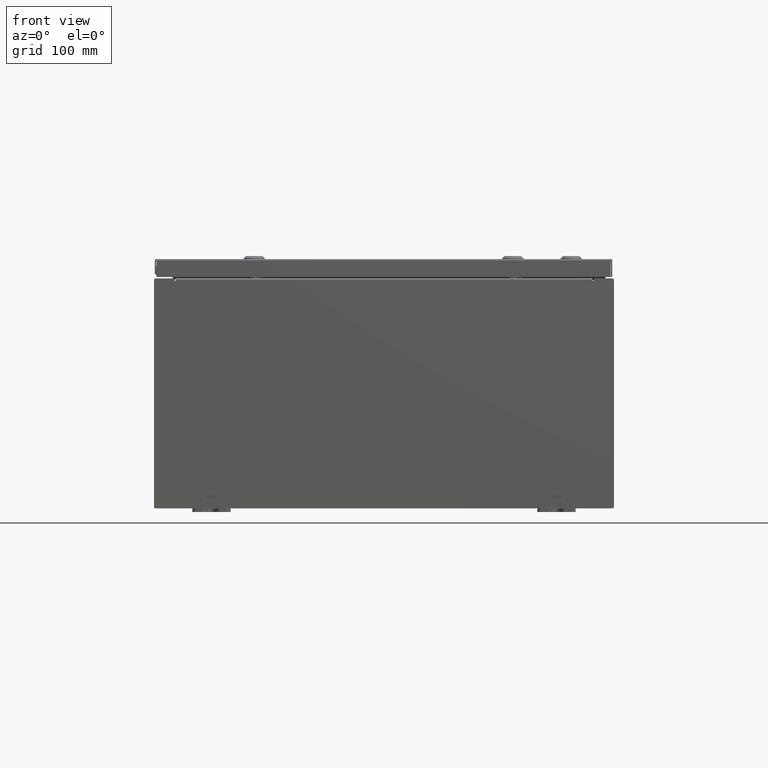
[diagram: clean part render]
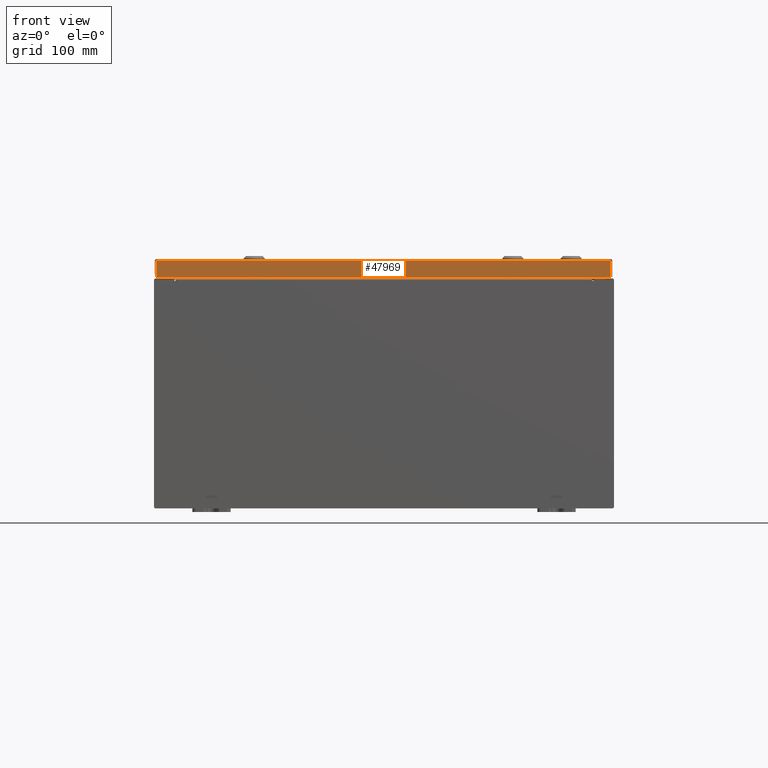
[diagram: same view with one face highlighted and labeled with its STEP entity id]
A machine part, front view. The second image highlights one B-rep face of the part: STEP entity #47969.
In plain terms, the highlighted planar face has unit normal (-0, 1, -0).
Its self-contained STEP definition (entity closure, byte-faithful):
#2366 = CARTESIAN_POINT ( 'NONE',  ( 11.93750000000000000, -11.93750000000000000, -0.08770000000000008300 ) ) ;
#4694 = ORIENTED_EDGE ( 'NONE', *, *, #11334, .F. ) ;
#8473 = CARTESIAN_POINT ( 'NONE',  ( 3.805002459576457300E-030, -11.93750000000000000, 3.049157650594635900E-014 ) ) ;
#9275 = DIRECTION ( 'NONE',  ( -0.0000000000000000000, -2.532419924601866100E-015, -1.000000000000000000 ) ) ;
#9378 = CARTESIAN_POINT ( 'NONE',  ( 11.84865786437627100, -11.93750000000000000, -0.08770000000000008300 ) ) ;
#10106 = LINE ( 'NONE', #38689, #62385 ) ;
#11265 = LINE ( 'NONE', #2366, #45830 ) ;
#11334 = EDGE_CURVE ( 'NONE', #12604, #33483, #11265, .T. ) ;
#12604 = VERTEX_POINT ( 'NONE', #44224 ) ;
#17064 = LINE ( 'NONE', #53502, #44658 ) ;
#17646 = LINE ( 'NONE', #27828, #52134 ) ;
#18373 = PLANE ( 'NONE',  #53101 ) ;
#18484 = DIRECTION ( 'NONE',  ( 1.000000000000000000, 3.187436615352006600E-031, -7.980458346197363700E-046 ) ) ;
#20929 = VERTEX_POINT ( 'NONE', #40396 ) ;
#23069 = EDGE_CURVE ( 'NONE', #12604, #45586, #17064, .T. ) ;
#23292 = DIRECTION ( 'NONE',  ( -3.187436615352006200E-031, 1.000000000000000000, -2.532419924601866100E-015 ) ) ;
#23621 = ORIENTED_EDGE ( 'NONE', *, *, #46193, .F. ) ;
#24161 = DIRECTION ( 'NONE',  ( 0.0000000000000000000, -2.532419924601866100E-015, -1.000000000000000000 ) ) ;
#27828 = CARTESIAN_POINT ( 'NONE',  ( 11.93750000000000000, -11.93750000000000200, -0.9376999999999997600 ) ) ;
#33483 = VERTEX_POINT ( 'NONE', #9378 ) ;
#35216 = ORIENTED_EDGE ( 'NONE', *, *, #23069, .T. ) ;
#36268 = EDGE_LOOP ( 'NONE', ( #4694, #35216, #41920, #23621 ) ) ;
#37429 = DIRECTION ( 'NONE',  ( -1.000000000000000000, 4.379057701015054300E-047, 1.258652478756310100E-016 ) ) ;
#38689 = CARTESIAN_POINT ( 'NONE',  ( 11.84865786437626900, -11.93750000000000000, -0.07469999999999980800 ) ) ;
#39203 = FACE_OUTER_BOUND ( 'NONE', #36268, .T. ) ;
#40396 = CARTESIAN_POINT ( 'NONE',  ( 11.84865786437626900, -11.93750000000000200, -0.9376999999999997600 ) ) ;
#41920 = ORIENTED_EDGE ( 'NONE', *, *, #49873, .F. ) ;
#44224 = CARTESIAN_POINT ( 'NONE',  ( -11.84865786437626800, -11.93750000000000000, -0.08770000000000008300 ) ) ;
#44658 = VECTOR ( 'NONE', #24161, 39.37007874015748100 ) ;
#45586 = VERTEX_POINT ( 'NONE', #56939 ) ;
#45830 = VECTOR ( 'NONE', #18484, 39.37007874015748100 ) ;
#46193 = EDGE_CURVE ( 'NONE', #33483, #20929, #10106, .T. ) ;
#47969 = ADVANCED_FACE ( 'NONE', ( #39203 ), #18373, .F. ) ;
#49873 = EDGE_CURVE ( 'NONE', #20929, #45586, #17646, .T. ) ;
#52134 = VECTOR ( 'NONE', #37429, 39.37007874015748100 ) ;
#53101 = AXIS2_PLACEMENT_3D ( 'NONE', #8473, #23292, #57626 ) ;
#53502 = CARTESIAN_POINT ( 'NONE',  ( -11.84865786437626600, -11.93750000000000000, 3.049157650594635900E-014 ) ) ;
#56939 = CARTESIAN_POINT ( 'NONE',  ( -11.84865786437626800, -11.93750000000000200, -0.9376999999999967600 ) ) ;
#57626 = DIRECTION ( 'NONE',  ( 0.0000000000000000000, 2.532419924601866100E-015, 1.000000000000000000 ) ) ;
#62385 = VECTOR ( 'NONE', #9275, 39.37007874015748100 ) ;